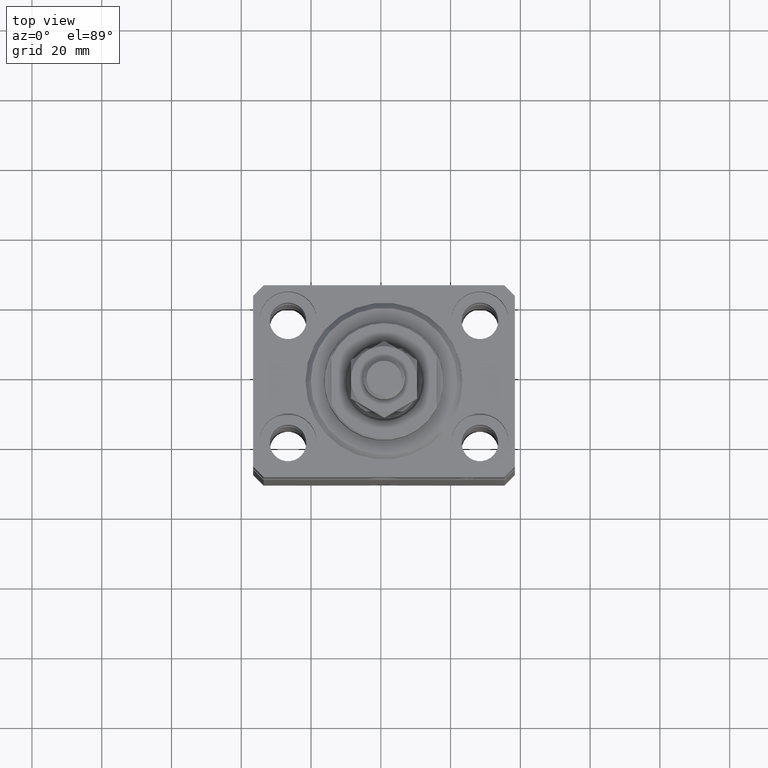
[diagram: clean part render]
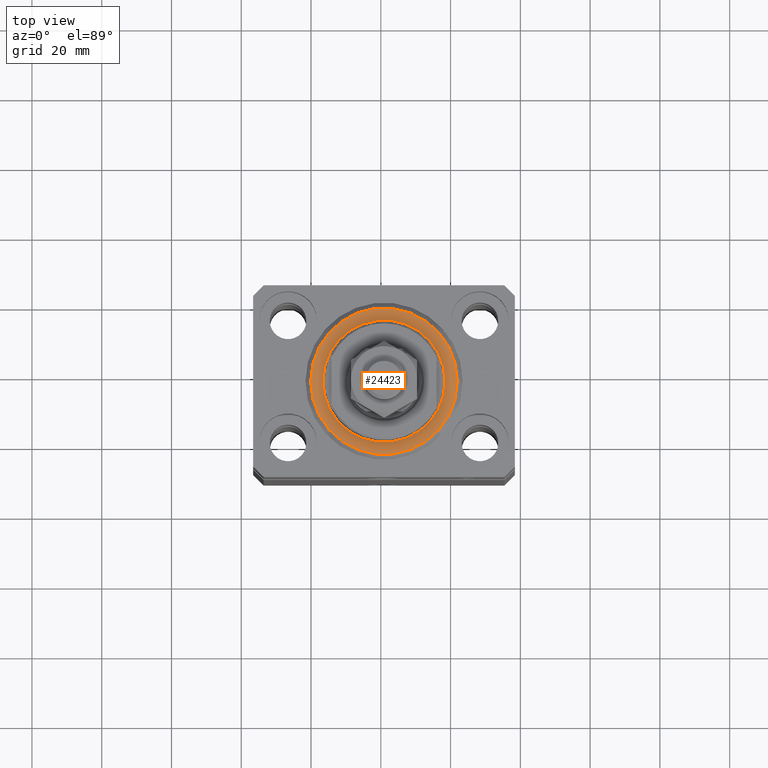
[diagram: same view with one face highlighted and labeled with its STEP entity id]
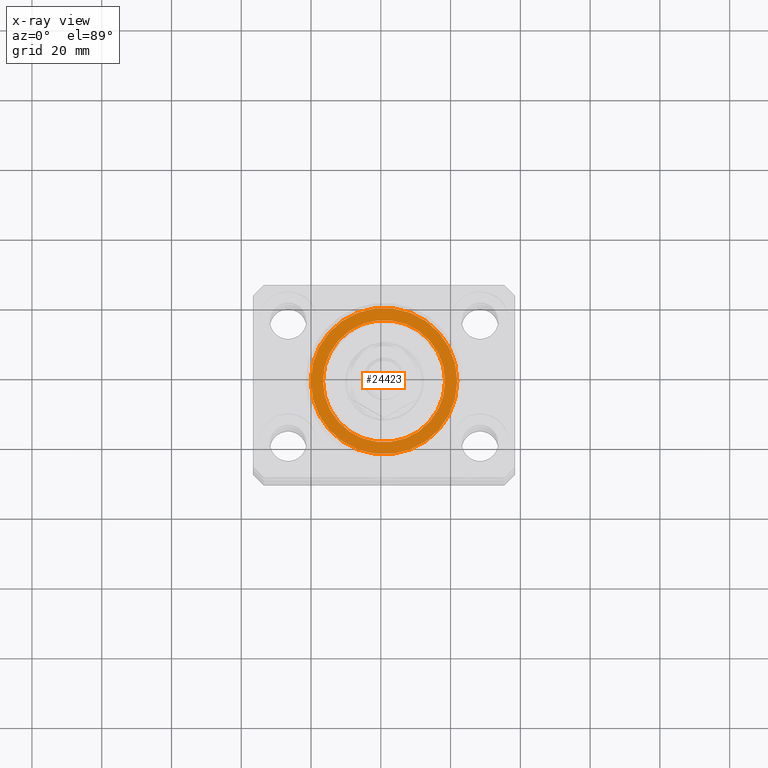
[diagram: x-ray of the same camera — body ghosted, the highlighted face saturated]
A machine part, top view. The second image highlights one B-rep face of the part: STEP entity #24423.
The next image is the same camera in x-ray: the body ghosted, the highlighted face saturated — about 0% of this face is hidden behind the body in this view.
In plain terms, the highlighted planar face has unit normal (0, 0, -1).
Its self-contained STEP definition (entity closure, byte-faithful):
#306 = EDGE_CURVE ( 'NONE', #11779, #17369, #18650, .T. ) ;
#2517 = CARTESIAN_POINT ( 'NONE',  ( -20.99999999999995381, 2.663606788145490261E-15, 0.000000000000000000 ) ) ;
#3070 = FACE_OUTER_BOUND ( 'NONE', #17424, .T. ) ;
#3915 = AXIS2_PLACEMENT_3D ( 'NONE', #26337, #19438, #30022 ) ;
#6809 = AXIS2_PLACEMENT_3D ( 'NONE', #9420, #41476, #40798 ) ;
#7073 = CARTESIAN_POINT ( 'NONE',  ( 0.000000000000000000, 0.000000000000000000, 0.000000000000000000 ) ) ;
#7774 = CARTESIAN_POINT ( 'NONE',  ( 17.50000000000000000, 0.000000000000000000, -2.168404344971008868E-16 ) ) ;
#9118 = EDGE_CURVE ( 'NONE', #32576, #31620, #24689, .T. ) ;
#9420 = CARTESIAN_POINT ( 'NONE',  ( 0.000000000000000000, 0.000000000000000000, 0.000000000000000000 ) ) ;
#10199 = DIRECTION ( 'NONE',  ( 1.000000000000000000, 0.000000000000000000, 0.000000000000000000 ) ) ;
#10332 = ORIENTED_EDGE ( 'NONE', *, *, #9118, .T. ) ;
#10541 = DIRECTION ( 'NONE',  ( -0.000000000000000000, -0.000000000000000000, -1.000000000000000000 ) ) ;
#10845 = CARTESIAN_POINT ( 'NONE',  ( 20.99999999999995381, 0.000000000000000000, 0.000000000000000000 ) ) ;
#11779 = VERTEX_POINT ( 'NONE', #7774 ) ;
#12210 = AXIS2_PLACEMENT_3D ( 'NONE', #45287, #13661, #10199 ) ;
#13245 = ORIENTED_EDGE ( 'NONE', *, *, #43521, .T. ) ;
#13630 = AXIS2_PLACEMENT_3D ( 'NONE', #7073, #10541, #14460 ) ;
#13661 = DIRECTION ( 'NONE',  ( 0.000000000000000000, 0.000000000000000000, 1.000000000000000000 ) ) ;
#14460 = DIRECTION ( 'NONE',  ( 1.000000000000000000, 0.000000000000000000, 0.000000000000000000 ) ) ;
#15643 = CIRCLE ( 'NONE', #6809, 20.99999999999995381 ) ;
#17152 = PLANE ( 'NONE',  #42707 ) ;
#17369 = VERTEX_POINT ( 'NONE', #32590 ) ;
#17424 = EDGE_LOOP ( 'NONE', ( #10332, #28313 ) ) ;
#18650 = CIRCLE ( 'NONE', #3915, 17.50000000000000000 ) ;
#19438 = DIRECTION ( 'NONE',  ( 0.000000000000000000, 0.000000000000000000, 1.000000000000000000 ) ) ;
#21531 = FACE_BOUND ( 'NONE', #29344, .T. ) ;
#24423 = ADVANCED_FACE ( 'NONE', ( #21531, #3070 ), #17152, .F. ) ;
#24689 = CIRCLE ( 'NONE', #13630, 20.99999999999995381 ) ;
#26337 = CARTESIAN_POINT ( 'NONE',  ( 0.000000000000000000, 0.000000000000000000, 0.000000000000000000 ) ) ;
#28313 = ORIENTED_EDGE ( 'NONE', *, *, #35617, .T. ) ;
#29344 = EDGE_LOOP ( 'NONE', ( #33587, #13245 ) ) ;
#30022 = DIRECTION ( 'NONE',  ( 1.000000000000000000, 0.000000000000000000, 0.000000000000000000 ) ) ;
#31620 = VERTEX_POINT ( 'NONE', #2517 ) ;
#31687 = DIRECTION ( 'NONE',  ( 1.000000000000000000, 0.000000000000000000, -0.000000000000000000 ) ) ;
#32576 = VERTEX_POINT ( 'NONE', #10845 ) ;
#32590 = CARTESIAN_POINT ( 'NONE',  ( -17.50000000000000000, 2.143131898507868643E-15, -2.168404344971008868E-16 ) ) ;
#33587 = ORIENTED_EDGE ( 'NONE', *, *, #306, .T. ) ;
#35617 = EDGE_CURVE ( 'NONE', #31620, #32576, #15643, .T. ) ;
#40211 = CIRCLE ( 'NONE', #12210, 17.50000000000000000 ) ;
#40798 = DIRECTION ( 'NONE',  ( 1.000000000000000000, 0.000000000000000000, 0.000000000000000000 ) ) ;
#41476 = DIRECTION ( 'NONE',  ( -0.000000000000000000, -0.000000000000000000, -1.000000000000000000 ) ) ;
#42307 = DIRECTION ( 'NONE',  ( 0.000000000000000000, 0.000000000000000000, 1.000000000000000000 ) ) ;
#42707 = AXIS2_PLACEMENT_3D ( 'NONE', #45321, #42307, #31687 ) ;
#43521 = EDGE_CURVE ( 'NONE', #17369, #11779, #40211, .T. ) ;
#45287 = CARTESIAN_POINT ( 'NONE',  ( 0.000000000000000000, 0.000000000000000000, 0.000000000000000000 ) ) ;
#45321 = CARTESIAN_POINT ( 'NONE',  ( 0.000000000000000000, 0.000000000000000000, 0.000000000000000000 ) ) ;